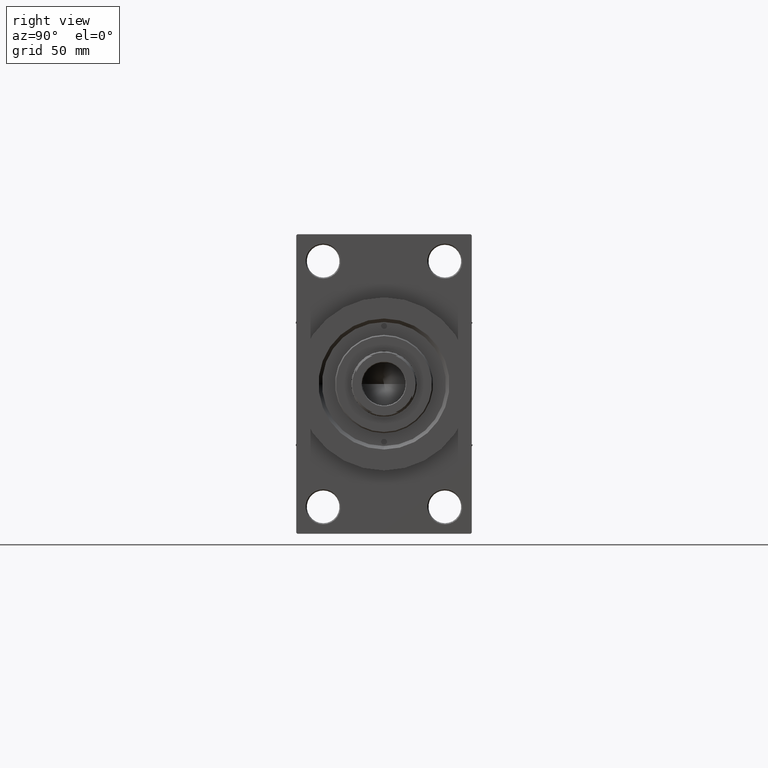
[diagram: clean part render]
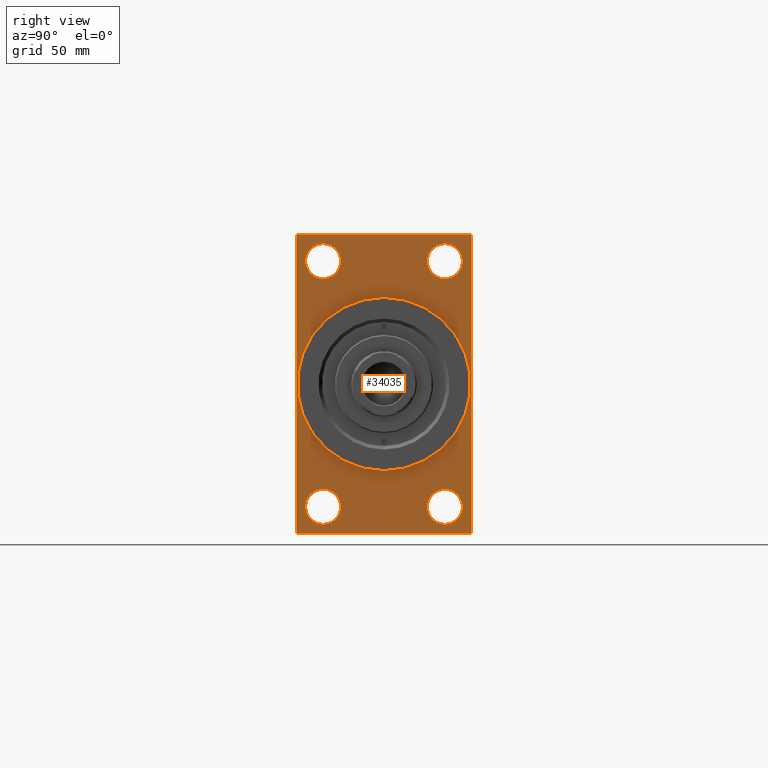
[diagram: same view with one face highlighted and labeled with its STEP entity id]
A machine part, right view. The second image highlights one B-rep face of the part: STEP entity #34035.
In plain terms, the highlighted planar face has unit normal (-1, 0, 0).
Its self-contained STEP definition (entity closure, byte-faithful):
#363 = AXIS2_PLACEMENT_3D ( 'NONE', #26191, #44651, #22840 ) ;
#605 = EDGE_CURVE ( 'NONE', #19516, #46667, #17569, .T. ) ;
#861 = VERTEX_POINT ( 'NONE', #8105 ) ;
#1889 = CARTESIAN_POINT ( 'NONE',  ( 218.0000000000000284, -25.99999999999999645, -52.49999999999999289 ) ) ;
#2667 = DIRECTION ( 'NONE',  ( -1.000000000000000000, 0.000000000000000000, -0.000000000000000000 ) ) ;
#3160 = ORIENTED_EDGE ( 'NONE', *, *, #27887, .F. ) ;
#3375 = AXIS2_PLACEMENT_3D ( 'NONE', #15091, #32585, #44308 ) ;
#3756 = EDGE_CURVE ( 'NONE', #5991, #20180, #27477, .T. ) ;
#3853 = CARTESIAN_POINT ( 'NONE',  ( 218.0000000000000284, 26.00000000000000000, -52.49999999999999289 ) ) ;
#3916 = EDGE_CURVE ( 'NONE', #31004, #23847, #18760, .T. ) ;
#4290 = ORIENTED_EDGE ( 'NONE', *, *, #13181, .F. ) ;
#4800 = AXIS2_PLACEMENT_3D ( 'NONE', #20883, #2667, #6982 ) ;
#4994 = VERTEX_POINT ( 'NONE', #10949 ) ;
#5263 = EDGE_LOOP ( 'NONE', ( #36046, #33116 ) ) ;
#5314 = AXIS2_PLACEMENT_3D ( 'NONE', #40026, #14633, #25639 ) ;
#5584 = CARTESIAN_POINT ( 'NONE',  ( 218.0000000000000284, -25.99999999999999645, 44.99999999999993605 ) ) ;
#5643 = CARTESIAN_POINT ( 'NONE',  ( 218.0000000000000284, -25.99999999999999645, 60.00000000000005684 ) ) ;
#5837 = VERTEX_POINT ( 'NONE', #5643 ) ;
#5991 = VERTEX_POINT ( 'NONE', #11597 ) ;
#6145 = CARTESIAN_POINT ( 'NONE',  ( 218.0000000000000284, 37.50000000000000000, 63.99999999999998579 ) ) ;
#6348 = VERTEX_POINT ( 'NONE', #5584 ) ;
#6499 = CIRCLE ( 'NONE', #363, 7.499999999999978684 ) ;
#6856 = AXIS2_PLACEMENT_3D ( 'NONE', #3853, #15606, #7930 ) ;
#6982 = DIRECTION ( 'NONE',  ( 0.000000000000000000, 0.000000000000000000, 1.000000000000000000 ) ) ;
#6993 = CARTESIAN_POINT ( 'NONE',  ( 218.0000000000000284, -25.99999999999999645, 52.50000000000000000 ) ) ;
#7930 = DIRECTION ( 'NONE',  ( 0.000000000000000000, 0.000000000000000000, 1.000000000000000000 ) ) ;
#7996 = DIRECTION ( 'NONE',  ( 0.000000000000000000, 0.000000000000000000, -1.000000000000000000 ) ) ;
#8105 = CARTESIAN_POINT ( 'NONE',  ( 218.0000000000000284, -25.99999999999999645, -59.99999999999997158 ) ) ;
#8716 = CARTESIAN_POINT ( 'NONE',  ( 218.0000000000000284, 36.99999999999997158, 63.99999999999998579 ) ) ;
#8762 = CARTESIAN_POINT ( 'NONE',  ( 218.0000000000000284, 26.00000000000000000, -59.99999999999997158 ) ) ;
#9952 = CARTESIAN_POINT ( 'NONE',  ( 218.0000000000000284, 26.00000000000000000, 45.00000000000001421 ) ) ;
#9982 = DIRECTION ( 'NONE',  ( 0.000000000000000000, -5.421010862427522170E-17, -1.000000000000000000 ) ) ;
#10949 = CARTESIAN_POINT ( 'NONE',  ( 218.0000000000000284, -37.49999999999999289, 63.49999999999991473 ) ) ;
#11013 = EDGE_LOOP ( 'NONE', ( #24607, #11997 ) ) ;
#11028 = PLANE ( 'NONE',  #5314 ) ;
#11075 = CARTESIAN_POINT ( 'NONE',  ( 218.0000000000000284, 26.00000000000000000, 59.99999999999997158 ) ) ;
#11560 = CARTESIAN_POINT ( 'NONE',  ( 218.0000000000000284, -37.49999999999999289, 63.49999999999991473 ) ) ;
#11597 = CARTESIAN_POINT ( 'NONE',  ( 218.0000000000000284, -37.49999999999999289, -63.50000000000002842 ) ) ;
#11763 = CARTESIAN_POINT ( 'NONE',  ( 218.0000000000000284, -36.99999999999996447, -64.00000000000001421 ) ) ;
#11894 = ORIENTED_EDGE ( 'NONE', *, *, #39574, .F. ) ;
#11997 = ORIENTED_EDGE ( 'NONE', *, *, #28143, .T. ) ;
#12104 = EDGE_CURVE ( 'NONE', #42377, #21976, #47285, .T. ) ;
#12125 = VERTEX_POINT ( 'NONE', #46815 ) ;
#13020 = EDGE_CURVE ( 'NONE', #861, #12125, #13357, .T. ) ;
#13181 = EDGE_CURVE ( 'NONE', #45612, #23847, #23651, .T. ) ;
#13197 = CIRCLE ( 'NONE', #39979, 7.500000000000062172 ) ;
#13357 = CIRCLE ( 'NONE', #42420, 7.499999999999978684 ) ;
#14361 = VERTEX_POINT ( 'NONE', #32680 ) ;
#14589 = CARTESIAN_POINT ( 'NONE',  ( 218.0000000000000284, -36.99999999999992895, 63.99999999999997158 ) ) ;
#14633 = DIRECTION ( 'NONE',  ( -1.000000000000000000, 0.000000000000000000, -0.000000000000000000 ) ) ;
#15091 = CARTESIAN_POINT ( 'NONE',  ( 218.0000000000000284, 26.00000000000000000, 52.49999999999999289 ) ) ;
#15446 = DIRECTION ( 'NONE',  ( 0.000000000000000000, -0.7071067811865672237, 0.7071067811865279218 ) ) ;
#15606 = DIRECTION ( 'NONE',  ( -1.000000000000000000, 0.000000000000000000, -0.000000000000000000 ) ) ;
#15609 = VECTOR ( 'NONE', #32180, 1000.000000000000000 ) ;
#17145 = EDGE_CURVE ( 'NONE', #35536, #44847, #17934, .T. ) ;
#17351 = EDGE_CURVE ( 'NONE', #4994, #5991, #38303, .T. ) ;
#17527 = CARTESIAN_POINT ( 'NONE',  ( 218.0000000000000284, 0.000000000000000000, 37.00000000000000000 ) ) ;
#17569 = CIRCLE ( 'NONE', #6856, 7.499999999999978684 ) ;
#17934 = CIRCLE ( 'NONE', #3375, 7.499999999999978684 ) ;
#18760 = LINE ( 'NONE', #22350, #40644 ) ;
#18963 = EDGE_CURVE ( 'NONE', #46667, #19516, #6499, .T. ) ;
#18988 = DIRECTION ( 'NONE',  ( -1.000000000000000000, 0.000000000000000000, -0.000000000000000000 ) ) ;
#19006 = CIRCLE ( 'NONE', #42753, 37.00000000000000000 ) ;
#19054 = DIRECTION ( 'NONE',  ( 0.000000000000000000, 0.000000000000000000, -1.000000000000000000 ) ) ;
#19516 = VERTEX_POINT ( 'NONE', #8762 ) ;
#20180 = VERTEX_POINT ( 'NONE', #11763 ) ;
#20883 = CARTESIAN_POINT ( 'NONE',  ( 218.0000000000000284, 26.00000000000000000, 52.49999999999999289 ) ) ;
#20957 = ORIENTED_EDGE ( 'NONE', *, *, #17145, .T. ) ;
#21635 = CIRCLE ( 'NONE', #4800, 7.499999999999978684 ) ;
#21681 = ORIENTED_EDGE ( 'NONE', *, *, #12104, .T. ) ;
#21755 = VECTOR ( 'NONE', #9982, 1000.000000000000000 ) ;
#21976 = VERTEX_POINT ( 'NONE', #14589 ) ;
#22350 = CARTESIAN_POINT ( 'NONE',  ( 218.0000000000000284, 37.49999999999999289, -63.49999999999995737 ) ) ;
#22357 = VECTOR ( 'NONE', #25535, 1000.000000000000000 ) ;
#22514 = FACE_BOUND ( 'NONE', #11013, .T. ) ;
#22586 = DIRECTION ( 'NONE',  ( -0.000000000000000000, -0.7071067811865524577, -0.7071067811865426878 ) ) ;
#22840 = DIRECTION ( 'NONE',  ( 0.000000000000000000, 0.000000000000000000, 1.000000000000000000 ) ) ;
#23552 = ORIENTED_EDGE ( 'NONE', *, *, #17351, .T. ) ;
#23561 = CIRCLE ( 'NONE', #41142, 7.499999999999978684 ) ;
#23651 = LINE ( 'NONE', #6145, #21755 ) ;
#23847 = VERTEX_POINT ( 'NONE', #36225 ) ;
#23904 = ORIENTED_EDGE ( 'NONE', *, *, #605, .T. ) ;
#24450 = VECTOR ( 'NONE', #15446, 1000.000000000000000 ) ;
#24607 = ORIENTED_EDGE ( 'NONE', *, *, #43053, .T. ) ;
#25042 = CARTESIAN_POINT ( 'NONE',  ( 218.0000000000000284, -37.49999999999999289, 63.99999999999997158 ) ) ;
#25166 = CIRCLE ( 'NONE', #29773, 7.500000000000062172 ) ;
#25180 = EDGE_CURVE ( 'NONE', #12125, #861, #23561, .T. ) ;
#25270 = DIRECTION ( 'NONE',  ( 0.000000000000000000, 0.000000000000000000, -1.000000000000000000 ) ) ;
#25294 = CARTESIAN_POINT ( 'NONE',  ( 218.0000000000000284, 26.00000000000000000, -45.00000000000001421 ) ) ;
#25403 = FACE_OUTER_BOUND ( 'NONE', #34339, .T. ) ;
#25535 = DIRECTION ( 'NONE',  ( 0.000000000000000000, -1.000000000000000000, -1.850371707708594563E-16 ) ) ;
#25639 = DIRECTION ( 'NONE',  ( -0.000000000000000000, 0.000000000000000000, 1.000000000000000000 ) ) ;
#26046 = EDGE_CURVE ( 'NONE', #21976, #4994, #29764, .T. ) ;
#26191 = CARTESIAN_POINT ( 'NONE',  ( 218.0000000000000284, 26.00000000000000000, -52.49999999999999289 ) ) ;
#26757 = EDGE_CURVE ( 'NONE', #43610, #14361, #19006, .T. ) ;
#27044 = EDGE_LOOP ( 'NONE', ( #42018, #3160 ) ) ;
#27477 = LINE ( 'NONE', #35390, #32228 ) ;
#27808 = ORIENTED_EDGE ( 'NONE', *, *, #40713, .T. ) ;
#27887 = EDGE_CURVE ( 'NONE', #14361, #43610, #39741, .T. ) ;
#28143 = EDGE_CURVE ( 'NONE', #5837, #6348, #25166, .T. ) ;
#28852 = EDGE_CURVE ( 'NONE', #45612, #42377, #41070, .T. ) ;
#29121 = CARTESIAN_POINT ( 'NONE',  ( 218.0000000000000284, 37.49999999999999289, -64.00000000000000000 ) ) ;
#29469 = FACE_BOUND ( 'NONE', #30629, .T. ) ;
#29749 = ORIENTED_EDGE ( 'NONE', *, *, #28852, .T. ) ;
#29764 = LINE ( 'NONE', #11560, #42720 ) ;
#29773 = AXIS2_PLACEMENT_3D ( 'NONE', #6993, #32636, #47261 ) ;
#30345 = CARTESIAN_POINT ( 'NONE',  ( 218.0000000000000284, 37.50000000000000000, 63.49999999999998579 ) ) ;
#30535 = AXIS2_PLACEMENT_3D ( 'NONE', #41290, #40826, #7996 ) ;
#30629 = EDGE_LOOP ( 'NONE', ( #27808, #20957 ) ) ;
#30837 = DIRECTION ( 'NONE',  ( 0.000000000000000000, 0.7071067811865771047, -0.7071067811865180408 ) ) ;
#31004 = VERTEX_POINT ( 'NONE', #34540 ) ;
#31010 = CARTESIAN_POINT ( 'NONE',  ( 218.0000000000000284, 36.99999999999997158, 63.99999999999998579 ) ) ;
#32180 = DIRECTION ( 'NONE',  ( 0.000000000000000000, -1.000000000000000000, -1.850371707708594563E-16 ) ) ;
#32228 = VECTOR ( 'NONE', #30837, 999.9999999999998863 ) ;
#32585 = DIRECTION ( 'NONE',  ( -1.000000000000000000, 0.000000000000000000, -0.000000000000000000 ) ) ;
#32636 = DIRECTION ( 'NONE',  ( -1.000000000000000000, 0.000000000000000000, -0.000000000000000000 ) ) ;
#32680 = CARTESIAN_POINT ( 'NONE',  ( 218.0000000000000284, 4.531193156845206793E-15, -37.00000000000000000 ) ) ;
#33116 = ORIENTED_EDGE ( 'NONE', *, *, #25180, .T. ) ;
#33912 = LINE ( 'NONE', #29121, #22357 ) ;
#34035 = ADVANCED_FACE ( 'NONE', ( #22514, #37135, #36427, #29469, #42969, #25403 ), #11028, .F. ) ;
#34317 = CARTESIAN_POINT ( 'NONE',  ( 218.0000000000000284, -25.99999999999999645, -52.49999999999999289 ) ) ;
#34339 = EDGE_LOOP ( 'NONE', ( #23552, #34948, #11894, #37944, #4290, #29749, #21681, #39721 ) ) ;
#34540 = CARTESIAN_POINT ( 'NONE',  ( 218.0000000000000284, 36.99999999999999289, -64.00000000000000000 ) ) ;
#34948 = ORIENTED_EDGE ( 'NONE', *, *, #3756, .T. ) ;
#35390 = CARTESIAN_POINT ( 'NONE',  ( 218.0000000000000284, -36.99999999999996447, -64.00000000000001421 ) ) ;
#35445 = DIRECTION ( 'NONE',  ( -1.000000000000000000, 0.000000000000000000, -0.000000000000000000 ) ) ;
#35536 = VERTEX_POINT ( 'NONE', #11075 ) ;
#36046 = ORIENTED_EDGE ( 'NONE', *, *, #13020, .T. ) ;
#36076 = ORIENTED_EDGE ( 'NONE', *, *, #18963, .T. ) ;
#36142 = DIRECTION ( 'NONE',  ( -1.000000000000000000, 0.000000000000000000, -0.000000000000000000 ) ) ;
#36225 = CARTESIAN_POINT ( 'NONE',  ( 218.0000000000000284, 37.49999999999999289, -63.49999999999995737 ) ) ;
#36427 = FACE_BOUND ( 'NONE', #41830, .T. ) ;
#37135 = FACE_BOUND ( 'NONE', #5263, .T. ) ;
#37265 = DIRECTION ( 'NONE',  ( 1.000000000000000000, 0.000000000000000000, 0.000000000000000000 ) ) ;
#37944 = ORIENTED_EDGE ( 'NONE', *, *, #3916, .T. ) ;
#38303 = LINE ( 'NONE', #25042, #44748 ) ;
#39574 = EDGE_CURVE ( 'NONE', #31004, #20180, #33912, .T. ) ;
#39721 = ORIENTED_EDGE ( 'NONE', *, *, #26046, .T. ) ;
#39741 = CIRCLE ( 'NONE', #30535, 37.00000000000000000 ) ;
#39979 = AXIS2_PLACEMENT_3D ( 'NONE', #47172, #36142, #43338 ) ;
#40026 = CARTESIAN_POINT ( 'NONE',  ( 218.0000000000000284, 0.000000000000000000, 0.000000000000000000 ) ) ;
#40325 = CARTESIAN_POINT ( 'NONE',  ( 218.0000000000000284, 37.50000000000000000, 63.99999999999998579 ) ) ;
#40644 = VECTOR ( 'NONE', #40799, 1000.000000000000000 ) ;
#40713 = EDGE_CURVE ( 'NONE', #44847, #35536, #21635, .T. ) ;
#40799 = DIRECTION ( 'NONE',  ( -0.000000000000000000, 0.7071067811865181518, 0.7071067811865769936 ) ) ;
#40826 = DIRECTION ( 'NONE',  ( 1.000000000000000000, 0.000000000000000000, 0.000000000000000000 ) ) ;
#40863 = CARTESIAN_POINT ( 'NONE',  ( 218.0000000000000284, 0.000000000000000000, 0.000000000000000000 ) ) ;
#41070 = LINE ( 'NONE', #8716, #24450 ) ;
#41142 = AXIS2_PLACEMENT_3D ( 'NONE', #1889, #35445, #42154 ) ;
#41262 = DIRECTION ( 'NONE',  ( 0.000000000000000000, 0.000000000000000000, 1.000000000000000000 ) ) ;
#41290 = CARTESIAN_POINT ( 'NONE',  ( 218.0000000000000284, 0.000000000000000000, 0.000000000000000000 ) ) ;
#41830 = EDGE_LOOP ( 'NONE', ( #23904, #36076 ) ) ;
#42018 = ORIENTED_EDGE ( 'NONE', *, *, #26757, .F. ) ;
#42154 = DIRECTION ( 'NONE',  ( 0.000000000000000000, 0.000000000000000000, 1.000000000000000000 ) ) ;
#42377 = VERTEX_POINT ( 'NONE', #31010 ) ;
#42420 = AXIS2_PLACEMENT_3D ( 'NONE', #34317, #18988, #41262 ) ;
#42720 = VECTOR ( 'NONE', #22586, 1000.000000000000000 ) ;
#42753 = AXIS2_PLACEMENT_3D ( 'NONE', #40863, #37265, #19054 ) ;
#42969 = FACE_BOUND ( 'NONE', #27044, .T. ) ;
#43053 = EDGE_CURVE ( 'NONE', #6348, #5837, #13197, .T. ) ;
#43338 = DIRECTION ( 'NONE',  ( 0.000000000000000000, 0.000000000000000000, 1.000000000000000000 ) ) ;
#43610 = VERTEX_POINT ( 'NONE', #17527 ) ;
#44308 = DIRECTION ( 'NONE',  ( 0.000000000000000000, 0.000000000000000000, 1.000000000000000000 ) ) ;
#44651 = DIRECTION ( 'NONE',  ( -1.000000000000000000, 0.000000000000000000, -0.000000000000000000 ) ) ;
#44748 = VECTOR ( 'NONE', #25270, 1000.000000000000000 ) ;
#44847 = VERTEX_POINT ( 'NONE', #9952 ) ;
#45612 = VERTEX_POINT ( 'NONE', #30345 ) ;
#46667 = VERTEX_POINT ( 'NONE', #25294 ) ;
#46815 = CARTESIAN_POINT ( 'NONE',  ( 218.0000000000000284, -25.99999999999999645, -45.00000000000001421 ) ) ;
#47172 = CARTESIAN_POINT ( 'NONE',  ( 218.0000000000000284, -25.99999999999999645, 52.50000000000000000 ) ) ;
#47261 = DIRECTION ( 'NONE',  ( 0.000000000000000000, 0.000000000000000000, 1.000000000000000000 ) ) ;
#47285 = LINE ( 'NONE', #40325, #15609 ) ;